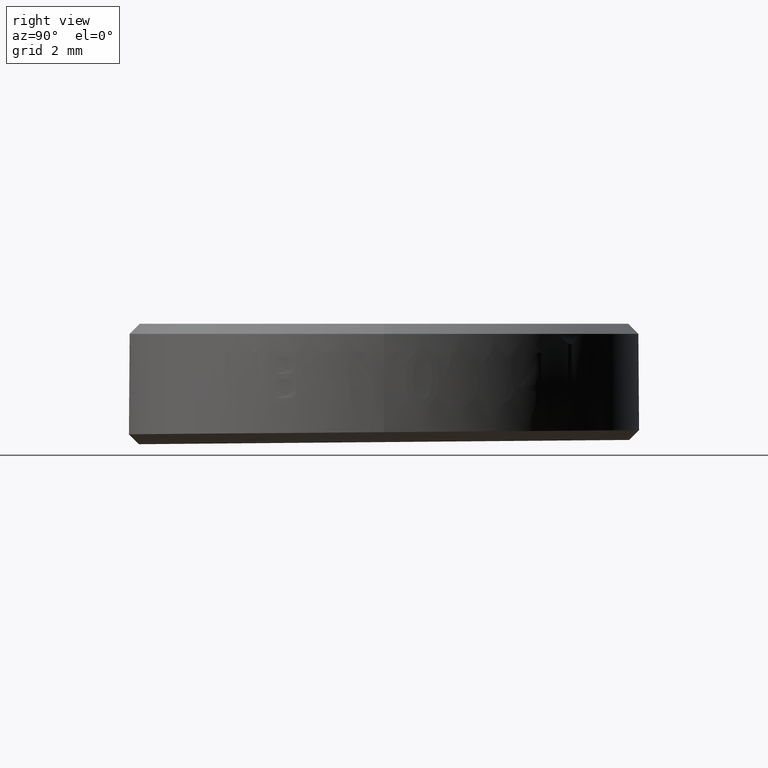
[diagram: clean part render]
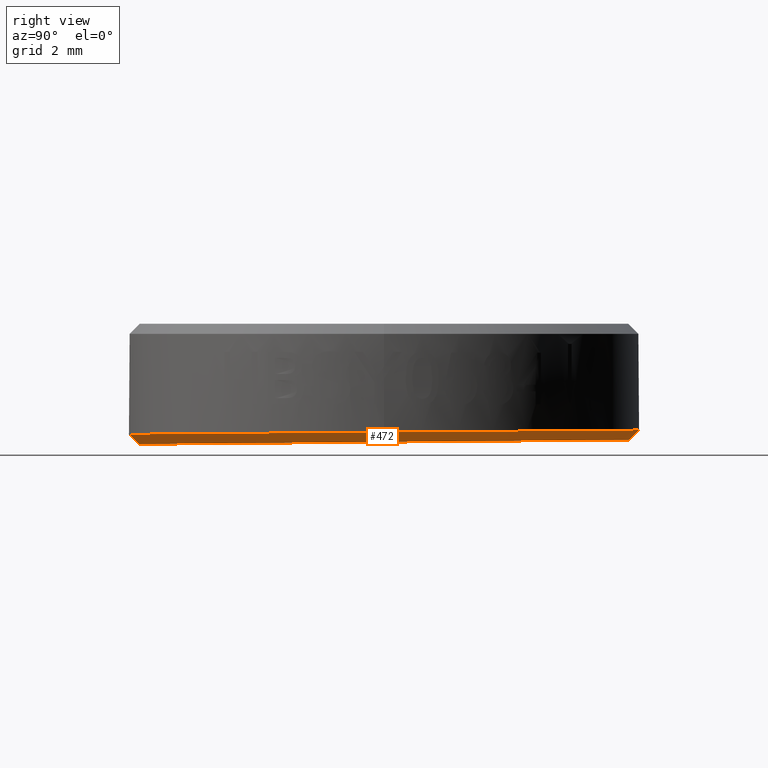
[diagram: same view with one face highlighted and labeled with its STEP entity id]
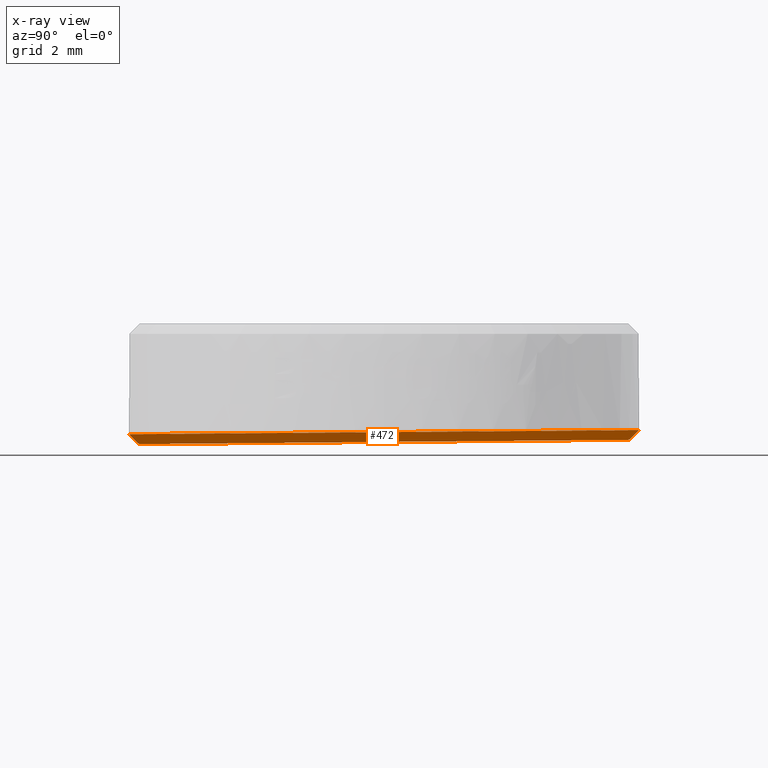
[diagram: x-ray of the same camera — body ghosted, the highlighted face saturated]
A machine part, right view. The second image highlights one B-rep face of the part: STEP entity #472.
The next image is the same camera in x-ray: the body ghosted, the highlighted face saturated — about 0% of this face is hidden behind the body in this view.
In plain terms, the highlighted face is a freeform B-spline surface patch.
Its self-contained STEP definition (entity closure, byte-faithful):
#94 = VERTEX_POINT ( 'NONE', #1037 ) ;
#146 = VERTEX_POINT ( 'NONE', #1188 ) ;
#149 = VERTEX_POINT ( 'NONE', #1186 ) ;
#154 = EDGE_CURVE ( 'NONE', #149, #146, #1255, .T. ) ;
#161 = EDGE_CURVE ( 'NONE', #94, #176, #1292, .T. ) ;
#176 = VERTEX_POINT ( 'NONE', #1291 ) ;
#472 = ADVANCED_FACE ( 'NONE', ( #2106 ), #2149, .T. ) ;
#474 = ORIENTED_EDGE ( 'NONE', *, *, #154, .F. ) ;
#475 = ORIENTED_EDGE ( 'NONE', *, *, #2600, .F. ) ;
#481 = ORIENTED_EDGE ( 'NONE', *, *, #487, .F. ) ;
#483 = EDGE_LOOP ( 'NONE', ( #474, #489, #475, #490, #481 ) ) ;
#487 = EDGE_CURVE ( 'NONE', #146, #176, #2217, .T. ) ;
#489 = ORIENTED_EDGE ( 'NONE', *, *, #572, .F. ) ;
#490 = ORIENTED_EDGE ( 'NONE', *, *, #161, .T. ) ;
#513 = VERTEX_POINT ( 'NONE', #2234 ) ;
#572 = EDGE_CURVE ( 'NONE', #513, #149, #2300, .T. ) ;
#1037 = CARTESIAN_POINT ( 'NONE',  ( 1.125339124336679200E-015, -6.349999999999999600, -1.252153404871644300 ) ) ;
#1186 = CARTESIAN_POINT ( 'NONE',  ( 1.052680027515084200E-015, 6.349999999999999600, -1.145648032865243000 ) ) ;
#1188 = CARTESIAN_POINT ( 'NONE',  ( 2.081668171172168500E-014, 6.104297290509324000, -1.391312994119007900 ) ) ;
#1253 = CARTESIAN_POINT ( 'NONE',  ( 2.081668171172168500E-014, 6.104297290509324000, -1.391312994119007900 ) ) ;
#1254 = CARTESIAN_POINT ( 'NONE',  ( 1.052680027515084200E-015, 6.349999999999999600, -1.145648032865243000 ) ) ;
#1255 = B_SPLINE_CURVE_WITH_KNOTS ( 'NONE', 1,
 ( #1254, #1253 ),
 .UNSPECIFIED., .F., .F.,
 ( 2, 2 ),
 ( 0.0000000000000000000, 1.000000000000000000 ),
 .UNSPECIFIED. ) ;
#1291 = CARTESIAN_POINT ( 'NONE',  ( 2.081668171172168500E-014, -6.100009519233965200, -1.497818366125408300 ) ) ;
#1292 = B_SPLINE_CURVE_WITH_KNOTS ( 'NONE', 1,
 ( #1327, #1326 ),
 .UNSPECIFIED., .F., .F.,
 ( 2, 2 ),
 ( 0.0000000000000000000, 1.000000000000000000 ),
 .UNSPECIFIED. ) ;
#1326 = CARTESIAN_POINT ( 'NONE',  ( 2.081668171172168500E-014, -6.100009519233965200, -1.497818366125408300 ) ) ;
#1327 = CARTESIAN_POINT ( 'NONE',  ( 1.125339124336679200E-015, -6.349999999999999600, -1.252153404871644300 ) ) ;
#2106 = FACE_OUTER_BOUND ( 'NONE', #483, .T. ) ;
#2125 = CARTESIAN_POINT ( 'NONE',  ( 6.102153404871656600, 1.601924621659814000, -1.430604605144751400 ) ) ;
#2126 = CARTESIAN_POINT ( 'NONE',  ( 6.102153404871654800, -1.597636850384455800, -1.458526755099665000 ) ) ;
#2127 = CARTESIAN_POINT ( 'NONE',  ( 5.446089859985329800, -3.181514359227644000, -1.472349044716084100 ) ) ;
#2128 = CARTESIAN_POINT ( 'NONE',  ( 3.183658244865332800, -5.443945974347642800, -1.492092986306853900 ) ) ;
#2129 = CARTESIAN_POINT ( 'NONE',  ( 1.599780738022384300, -6.100009519233969600, -1.497818366125408300 ) ) ;
#2130 = CARTESIAN_POINT ( 'NONE',  ( 1.387778780781445700E-014, -6.100009519233963400, -1.497818366125408500 ) ) ;
#2131 = CARTESIAN_POINT ( 'NONE',  ( 1.084202172485504400E-015, -6.350000000000000500, -1.252153404871644300 ) ) ;
#2132 = CARTESIAN_POINT ( 'NONE',  ( -1.664757834151763300, -6.349999999999995200, -1.252153404871644100 ) ) ;
#2133 = CARTESIAN_POINT ( 'NONE',  ( -3.312966507652066000, -5.667289613417086300, -1.246428025053089000 ) ) ;
#2134 = CARTESIAN_POINT ( 'NONE',  ( -5.667289613417110200, -3.312966507652046900, -1.226684083462319800 ) ) ;
#2135 = CARTESIAN_POINT ( 'NONE',  ( -6.350000000000002300, -1.664757832229614200, -1.212861793846567600 ) ) ;
#2136 = CARTESIAN_POINT ( 'NONE',  ( -6.350000000000000500, 1.664757832229588600, -1.184939643890319700 ) ) ;
#2137 = CARTESIAN_POINT ( 'NONE',  ( -5.667289613417092500, 3.312966507652058000, -1.171117354274567200 ) ) ;
#2138 = CARTESIAN_POINT ( 'NONE',  ( -3.312966507652068700, 5.667289613417090700, -1.151373412683798400 ) ) ;
#2139 = CARTESIAN_POINT ( 'NONE',  ( -1.664757834151748600, 6.349999999999997000, -1.145648032865243000 ) ) ;
#2140 = CARTESIAN_POINT ( 'NONE',  ( 1.664757834151750600, 6.350000000000004100, -1.145648032865243000 ) ) ;
#2141 = CARTESIAN_POINT ( 'NONE',  ( 3.312966507652062500, 5.667289613417095100, -1.151373412683798200 ) ) ;
#2142 = CARTESIAN_POINT ( 'NONE',  ( 5.667289613417082700, 3.312966507652069100, -1.171117354274567400 ) ) ;
#2143 = CARTESIAN_POINT ( 'NONE',  ( 6.349999999999998800, 1.664757832229596800, -1.184939643890319000 ) ) ;
#2144 = CARTESIAN_POINT ( 'NONE',  ( 6.350000000000004100, -1.664757832229595100, -1.212861793846568200 ) ) ;
#2145 = CARTESIAN_POINT ( 'NONE',  ( 5.667289613417092500, -3.312966507652062900, -1.226684083462319800 ) ) ;
#2146 = CARTESIAN_POINT ( 'NONE',  ( 3.312966507652065100, -5.667289613417090700, -1.246428025053089000 ) ) ;
#2147 = CARTESIAN_POINT ( 'NONE',  ( 1.664757834151765500, -6.350000000000005900, -1.252153404871644500 ) ) ;
#2148 = CARTESIAN_POINT ( 'NONE',  ( 1.084202172485504400E-015, -6.350000000000000500, -1.252153404871644300 ) ) ;
#2149 = B_SPLINE_SURFACE_WITH_KNOTS ( 'NONE', 1, 3, ( 
 ( #2148, #2147, #2146, #2145, #2144, #2143, #2142, #2141, #2140, #2139, #2138, #2137, #2136, #2135, #2134, #2133, #2132, #2131 ),
 ( #2130, #2129, #2128, #2127, #2126, #2125, #2187, #2186, #2185, #2184, #2183, #2182, #2181, #2180, #2179, #2178, #2177, #2176 ) ),
 .UNSPECIFIED., .F., .T., .F.,
 ( 2, 2 ),
 ( 4, 2, 2, 2, 2, 2, 2, 2, 4 ),
 ( 0.0000000000000000000, 1.000000000000000000 ),
 ( 0.0000000000000000000, 0.7853981633974482800, 1.570796326794896600, 2.356194490192344800, 3.141592653589793100, 3.926990816987241400, 4.712388980384689700, 5.497787143782138000, 6.283185307179586200 ),
 .UNSPECIFIED. ) ;
#2176 = CARTESIAN_POINT ( 'NONE',  ( 1.387778780781445700E-014, -6.100009519233963400, -1.497818366125408500 ) ) ;
#2177 = CARTESIAN_POINT ( 'NONE',  ( -1.599780738022356500, -6.100009519233956300, -1.497818366125408800 ) ) ;
#2178 = CARTESIAN_POINT ( 'NONE',  ( -3.183658244865309200, -5.443945974347634800, -1.492092986306854200 ) ) ;
#2179 = CARTESIAN_POINT ( 'NONE',  ( -5.446089859985325400, -3.181514359227624000, -1.472349044716083900 ) ) ;
#2180 = CARTESIAN_POINT ( 'NONE',  ( -6.102153404871630800, -1.597636850384466900, -1.458526755099665000 ) ) ;
#2181 = CARTESIAN_POINT ( 'NONE',  ( -6.102153404871625500, 1.601924621659806200, -1.430604605144751400 ) ) ;
#2182 = CARTESIAN_POINT ( 'NONE',  ( -5.446089859985311100, 3.185802130502990900, -1.416782315528331700 ) ) ;
#2183 = CARTESIAN_POINT ( 'NONE',  ( -3.183658244865309700, 5.448233745623001700, -1.397038373937563100 ) ) ;
#2184 = CARTESIAN_POINT ( 'NONE',  ( -1.599780738022340600, 6.104297290509322200, -1.391312994119007900 ) ) ;
#2185 = CARTESIAN_POINT ( 'NONE',  ( 1.599780738022368300, 6.104297290509325800, -1.391312994119007900 ) ) ;
#2186 = CARTESIAN_POINT ( 'NONE',  ( 3.183658244865334600, 5.448233745623005200, -1.397038373937562700 ) ) ;
#2187 = CARTESIAN_POINT ( 'NONE',  ( 5.446089859985328000, 3.185802130503001500, -1.416782315528332100 ) ) ;
#2194 = CARTESIAN_POINT ( 'NONE',  ( 2.081668171172168500E-014, -6.100009519233965200, -1.497818366125408300 ) ) ;
#2195 = CARTESIAN_POINT ( 'NONE',  ( 0.7995935894898698000, -6.100264526886043400, -1.497820591543474100 ) ) ;
#2196 = CARTESIAN_POINT ( 'NONE',  ( 1.577309881201886900, -5.943786610756657900, -1.496455029457240300 ) ) ;
#2197 = CARTESIAN_POINT ( 'NONE',  ( 3.088987869070264600, -5.317364930934959800, -1.490988330276175700 ) ) ;
#2198 = CARTESIAN_POINT ( 'NONE',  ( 3.749799388436616500, -4.877985076545003000, -1.487153920376994800 ) ) ;
#2199 = CARTESIAN_POINT ( 'NONE',  ( 4.879948716414074500, -3.747475257030294000, -1.477288110645943500 ) ) ;
#2200 = CARTESIAN_POINT ( 'NONE',  ( 5.320116672109223900, -3.086013827366568500, -1.471515624200586900 ) ) ;
#2201 = CARTESIAN_POINT ( 'NONE',  ( 5.945322640857793500, -1.575996150130003000, -1.458337899569645000 ) ) ;
#2202 = CARTESIAN_POINT ( 'NONE',  ( 6.102280857877003600, -0.7971198204241704000, -1.451540748814956100 ) ) ;
#2203 = CARTESIAN_POINT ( 'NONE',  ( 6.102025951866336200, 0.8014075916995240200, -1.437590611429460500 ) ) ;
#2204 = CARTESIAN_POINT ( 'NONE',  ( 5.945547835879184900, 1.580377200475951100, -1.430792646640655100 ) ) ;
#2205 = CARTESIAN_POINT ( 'NONE',  ( 5.319891477087832500, 3.090208319571326800, -1.417616550077947000 ) ) ;
#2206 = CARTESIAN_POINT ( 'NONE',  ( 4.880128962007673500, 3.751943274249240900, -1.411841676615952700 ) ) ;
#2207 = CARTESIAN_POINT ( 'NONE',  ( 3.749619142843018800, 4.882092601876767200, -1.401979012849941200 ) ) ;
#2208 = CARTESIAN_POINT ( 'NONE',  ( 3.088157713085959400, 5.322260557915167400, -1.398137725291868500 ) ) ;
#2209 = CARTESIAN_POINT ( 'NONE',  ( 1.578140037186175800, 5.947466526327160000, -1.392681635463547600 ) ) ;
#2210 = CARTESIAN_POINT ( 'NONE',  ( 0.7992637068270311800, 6.104424743513515500, -1.391311881853490400 ) ) ;
#2216 = CARTESIAN_POINT ( 'NONE',  ( 2.081668171172168500E-014, 6.104297290509324000, -1.391312994119007900 ) ) ;
#2217 = B_SPLINE_CURVE_WITH_KNOTS ( 'NONE', 3,
 ( #2216, #2210, #2209, #2208, #2207, #2206, #2205, #2204, #2203, #2202, #2201, #2200, #2199, #2198, #2197, #2196, #2195, #2194 ),
 .UNSPECIFIED., .F., .F.,
 ( 4, 2, 2, 2, 2, 2, 2, 2, 4 ),
 ( 0.5000000000000000000, 0.5625000000000000000, 0.6250000000000001100, 0.6875000000000001100, 0.7500000000000001100, 0.8125000000000001100, 0.8750000000000000000, 0.9375000000000000000, 1.000000000000000000 ),
 .UNSPECIFIED. ) ;
#2234 = CARTESIAN_POINT ( 'NONE',  ( 6.350000000000000500, 8.225062277234863800E-016, -1.198900718868443700 ) ) ;
#2300 = B_SPLINE_CURVE_WITH_KNOTS ( 'NONE', 3,
 ( #2325, #2321, #2320, #2377, #2376, #2375, #2374, #2373, #2372, #2371, #2370, #2369, #2368, #2367 ),
 .UNSPECIFIED., .F., .F.,
 ( 4, 2, 2, 2, 2, 2, 4 ),
 ( 0.2500000000000000000, 0.2812500000000000000, 0.3125000000000000000, 0.3437499999999999400, 0.3750000000000000000, 0.4375000000000000000, 0.5000000000000000000 ),
 .UNSPECIFIED. ) ;
#2320 = CARTESIAN_POINT ( 'NONE',  ( 6.283634359313008000, 1.043647014055018700, -1.190302992875427600 ) ) ;
#2321 = CARTESIAN_POINT ( 'NONE',  ( 6.349999999999999600, 0.5291435239382199500, -1.194463189133288200 ) ) ;
#2325 = CARTESIAN_POINT ( 'NONE',  ( 6.350000000000000500, 8.225062277234863800E-016, -1.198900718868443700 ) ) ;
#2367 = CARTESIAN_POINT ( 'NONE',  ( 1.052680027515084200E-015, 6.349999999999999600, -1.145648032865243000 ) ) ;
#2368 = CARTESIAN_POINT ( 'NONE',  ( 0.6040464965953314900, 6.349999999999999600, -1.145648421002651900 ) ) ;
#2369 = CARTESIAN_POINT ( 'NONE',  ( 1.267687288626685700, 6.263427804805039600, -1.146758143168199900 ) ) ;
#2370 = CARTESIAN_POINT ( 'NONE',  ( 2.633637139463523200, 5.822500695181489900, -1.151196255198689600 ) ) ;
#2371 = CARTESIAN_POINT ( 'NONE',  ( 3.336231079895835000, 5.466532477397165300, -1.154524645123111700 ) ) ;
#2372 = CARTESIAN_POINT ( 'NONE',  ( 4.307196858083576900, 4.684365913540510500, -1.161181230873512300 ) ) ;
#2373 = CARTESIAN_POINT ( 'NONE',  ( 4.616449332049951300, 4.382695902609516000, -1.163677426267606400 ) ) ;
#2374 = CARTESIAN_POINT ( 'NONE',  ( 5.181424196041660900, 3.697630472452423600, -1.169224484010384500 ) ) ;
#2375 = CARTESIAN_POINT ( 'NONE',  ( 5.437086215315841500, 3.314171337218957200, -1.172275346359066700 ) ) ;
#2376 = CARTESIAN_POINT ( 'NONE',  ( 5.867608742671701600, 2.473217703345959700, -1.178931738011022000 ) ) ;
#2377 = CARTESIAN_POINT ( 'NONE',  ( 6.042377218921672000, 2.015672938683586800, -1.182537267314294400 ) ) ;
#2381 = CARTESIAN_POINT ( 'NONE',  ( 6.350000000000000500, 8.225062277234863800E-016, -1.198900718868443700 ) ) ;
#2382 = CARTESIAN_POINT ( 'NONE',  ( 6.350000000000002300, -0.5291435239382180600, -1.203338248603599300 ) ) ;
#2383 = CARTESIAN_POINT ( 'NONE',  ( 6.283634359317207300, -1.043647014023711500, -1.207498444861197000 ) ) ;
#2384 = CARTESIAN_POINT ( 'NONE',  ( 6.042377218938651300, -2.015672938629577100, -1.215264170422119200 ) ) ;
#2385 = CARTESIAN_POINT ( 'NONE',  ( 5.867608742697231400, -2.473217703283794800, -1.218869699725302800 ) ) ;
#2386 = CARTESIAN_POINT ( 'NONE',  ( 5.437086215358980300, -3.314171337146998700, -1.225526091377118000 ) ) ;
#2387 = CARTESIAN_POINT ( 'NONE',  ( 5.181424196093836100, -3.697630472378806000, -1.228576953725748300 ) ) ;
#2388 = CARTESIAN_POINT ( 'NONE',  ( 4.616449332117614500, -4.382695902537820500, -1.234124011468456400 ) ) ;
#2389 = CARTESIAN_POINT ( 'NONE',  ( 4.307196858157677600, -4.684365913472372100, -1.236620206862533400 ) ) ;
#2390 = CARTESIAN_POINT ( 'NONE',  ( 3.336231079982310300, -5.466532477344388000, -1.243276792612933300 ) ) ;
#2391 = CARTESIAN_POINT ( 'NONE',  ( 2.633637139548533400, -5.822500695145098600, -1.246605182537425800 ) ) ;
#2392 = CARTESIAN_POINT ( 'NONE',  ( 1.267687288685061900, -6.263427804795139900, -1.251043294568196400 ) ) ;
#2393 = CARTESIAN_POINT ( 'NONE',  ( 0.6041390646816451300, -6.350000000000000500, -1.252153016674473700 ) ) ;
#2394 = CARTESIAN_POINT ( 'NONE',  ( 1.125339124336679200E-015, -6.349999999999999600, -1.252153404871644300 ) ) ;
#2401 = B_SPLINE_CURVE_WITH_KNOTS ( 'NONE', 3,
 ( #2394, #2393, #2392, #2391, #2390, #2389, #2388, #2387, #2386, #2385, #2384, #2383, #2382, #2381 ),
 .UNSPECIFIED., .F., .F.,
 ( 4, 2, 2, 2, 2, 2, 4 ),
 ( 0.0000000000000000000, 0.06249999999999997200, 0.1249999999999999400, 0.1562499999999999400, 0.1874999999999999400, 0.2187499999999999400, 0.2500000000000000000 ),
 .UNSPECIFIED. ) ;
#2600 = EDGE_CURVE ( 'NONE', #94, #513, #2401, .T. ) ;